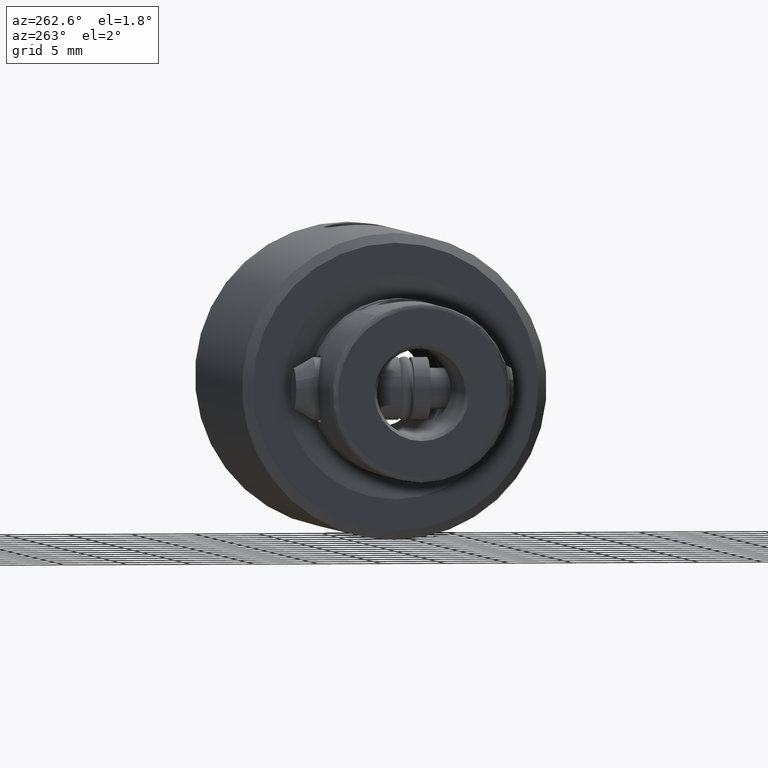
[diagram: clean part render]
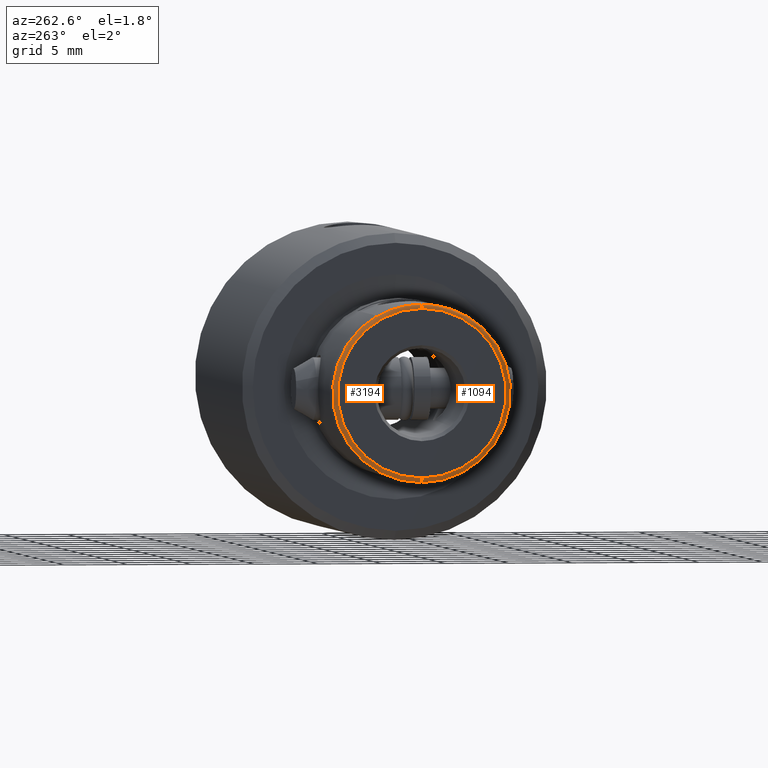
[diagram: same view with one multi-face feature highlighted, each face labeled with its STEP entity id]
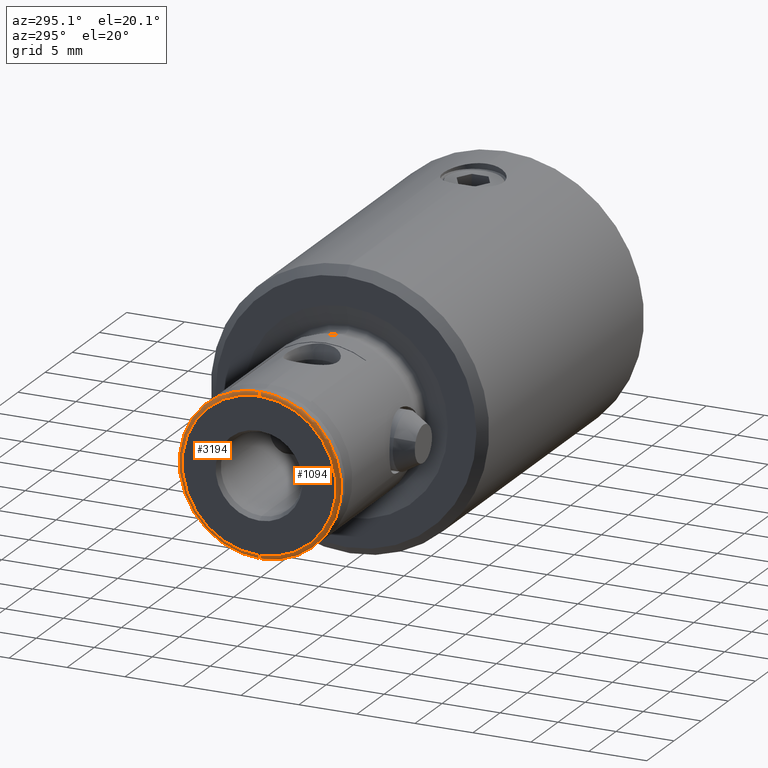
[diagram: same view with one multi-face feature highlighted, each face labeled with its STEP entity id]
A machine part, auxiliary view. The highlighted faces form ONE feature: a constant-radius fillet chain: 2 tangent blend faces with common blend radius 0.4 mm. The faces share edges in the B-rep.
A second angle (auxiliary view) of the same feature is appended — it is thin or edge-on in the first view.
Their STEP definitions:
[1] entity #1094 (Torus):
#66 = EDGE_CURVE ( 'NONE', #3779, #3243, #1831, .T. ) ;
#74 = ORIENTED_EDGE ( 'NONE', *, *, #667, .F. ) ;
#116 = ORIENTED_EDGE ( 'NONE', *, *, #670, .F. ) ;
#230 = CARTESIAN_POINT ( 'NONE',  ( 6.949999999999999300, -4.661647059522612200E-015, 45.83891628750564000 ) ) ;
#291 = DIRECTION ( 'NONE',  ( -0.0000000000000000000, -1.000000000000000000, -0.0000000000000000000 ) ) ;
#494 = CARTESIAN_POINT ( 'NONE',  ( 6.629190075645206900, 8.345472000554884100E-016, 46.00000000000000000 ) ) ;
#615 = ORIENTED_EDGE ( 'NONE', *, *, #2017, .T. ) ;
#651 = AXIS2_PLACEMENT_3D ( 'NONE', #3585, #1607, #3902 ) ;
#667 = EDGE_CURVE ( 'NONE', #3055, #3572, #3256, .T. ) ;
#670 = EDGE_CURVE ( 'NONE', #3581, #3055, #2884, .T. ) ;
#829 = DIRECTION ( 'NONE',  ( -1.224646799147353200E-016, 1.000000000000000000, 0.0000000000000000000 ) ) ;
#927 = EDGE_CURVE ( 'NONE', #3779, #3696, #2097, .T. ) ;
#977 = DIRECTION ( 'NONE',  ( -1.000000000000000000, 0.0000000000000000000, 0.0000000000000000000 ) ) ;
#1094 = ADVANCED_FACE ( 'NONE', ( #2556 ), #3335, .T. ) ;
#1216 = CARTESIAN_POINT ( 'NONE',  ( 6.012177826494832000, -3.500000000000000000, 45.82958365722462400 ) ) ;
#1330 = CARTESIAN_POINT ( 'NONE',  ( 6.055573711234293600, -3.500000000000000000, 45.76413856607491200 ) ) ;
#1340 = CARTESIAN_POINT ( 'NONE',  ( 0.0000000000000000000, 0.0000000000000000000, 45.60000000000000100 ) ) ;
#1476 = AXIS2_PLACEMENT_3D ( 'NONE', #1650, #1593, #3247 ) ;
#1527 = ORIENTED_EDGE ( 'NONE', *, *, #2380, .F. ) ;
#1559 = AXIS2_PLACEMENT_3D ( 'NONE', #1340, #3325, #977 ) ;
#1574 = ORIENTED_EDGE ( 'NONE', *, *, #66, .F. ) ;
#1593 = DIRECTION ( 'NONE',  ( 0.0000000000000000000, 0.0000000000000000000, 1.000000000000000000 ) ) ;
#1607 = DIRECTION ( 'NONE',  ( 0.0000000000000000000, 0.0000000000000000000, 1.000000000000000000 ) ) ;
#1650 = CARTESIAN_POINT ( 'NONE',  ( 0.0000000000000000000, 0.0000000000000000000, 46.00000000000000000 ) ) ;
#1831 = CIRCLE ( 'NONE', #1476, 6.629190075645206900 ) ;
#1918 = CARTESIAN_POINT ( 'NONE',  ( 6.062177826491063300, -3.500000000000000000, 45.74999999999999300 ) ) ;
#1972 = DIRECTION ( 'NONE',  ( -1.000000000000000000, -1.224646799147353200E-016, 0.0000000000000000000 ) ) ;
#2017 = EDGE_CURVE ( 'NONE', #3696, #3572, #3244, .T. ) ;
#2097 = CIRCLE ( 'NONE', #3834, 0.3999999999999975800 ) ;
#2099 = AXIS2_PLACEMENT_3D ( 'NONE', #2840, #829, #1972 ) ;
#2242 = ORIENTED_EDGE ( 'NONE', *, *, #927, .T. ) ;
#2278 = CARTESIAN_POINT ( 'NONE',  ( -6.629190075645206900, 0.0000000000000000000, 45.60000000000000100 ) ) ;
#2380 = EDGE_CURVE ( 'NONE', #3243, #3581, #4038, .T. ) ;
#2497 = EDGE_LOOP ( 'NONE', ( #1527, #1574, #2242, #615, #74, #116 ) ) ;
#2556 = FACE_OUTER_BOUND ( 'NONE', #2497, .T. ) ;
#2590 = CARTESIAN_POINT ( 'NONE',  ( 6.950000000000002000, -0.6100083071536003300, 45.83891628750565400 ) ) ;
#2606 = DIRECTION ( 'NONE',  ( 0.0000000000000000000, 0.0000000000000000000, -1.000000000000000000 ) ) ;
#2840 = CARTESIAN_POINT ( 'NONE',  ( 6.629190075645206900, 8.118416407078302900E-016, 45.60000000000000100 ) ) ;
#2884 = B_SPLINE_CURVE_WITH_KNOTS ( 'NONE', 3,
 ( #3227, #2590, #3631, #3290, #3258, #3246 ),
 .UNSPECIFIED., .F., .F.,
 ( 4, 2, 4 ),
 ( 0.003685555790496418800, 0.005530184435536727800, 0.007374813080577036400 ),
 .UNSPECIFIED. ) ;
#2918 = CARTESIAN_POINT ( 'NONE',  ( 6.012177826494832000, -3.500000000000000000, 45.82958365722462400 ) ) ;
#2958 = CARTESIAN_POINT ( 'NONE',  ( 6.062177826491063300, -3.500000000000000000, 45.74999999999999300 ) ) ;
#2976 = CARTESIAN_POINT ( 'NONE',  ( 6.031313584202576000, -3.500000000000000400, 45.80451829029652800 ) ) ;
#3055 = VERTEX_POINT ( 'NONE', #1216 ) ;
#3227 = CARTESIAN_POINT ( 'NONE',  ( 6.949999999999999300, -4.661647059522612200E-015, 45.83891628750564000 ) ) ;
#3243 = VERTEX_POINT ( 'NONE', #494 ) ;
#3244 = CIRCLE ( 'NONE', #651, 7.000000000000003600 ) ;
#3246 = CARTESIAN_POINT ( 'NONE',  ( 6.012177826494832000, -3.500000000000000000, 45.82958365722462400 ) ) ;
#3247 = DIRECTION ( 'NONE',  ( 1.000000000000000000, 0.0000000000000000000, 0.0000000000000000000 ) ) ;
#3256 = B_SPLINE_CURVE_WITH_KNOTS ( 'NONE', 3,
 ( #2918, #3485, #2976, #3274, #1330, #1918 ),
 .UNSPECIFIED., .F., .F.,
 ( 4, 2, 4 ),
 ( 0.002695799402419125400, 0.002742612760528581700, 0.002789426118638038000 ),
 .UNSPECIFIED. ) ;
#3258 = CARTESIAN_POINT ( 'NONE',  ( 6.320115424214631800, -2.966636435183896700, 45.83274133707434600 ) ) ;
#3274 = CARTESIAN_POINT ( 'NONE',  ( 6.048075180170096500, -3.499999999999999600, 45.77786771288550200 ) ) ;
#3290 = CARTESIAN_POINT ( 'NONE',  ( 6.553898425522756800, -2.401512669169245200, 45.83505005294603800 ) ) ;
#3325 = DIRECTION ( 'NONE',  ( 0.0000000000000000000, 0.0000000000000000000, -1.000000000000000000 ) ) ;
#3335 = TOROIDAL_SURFACE ( 'NONE', #1559, 6.629190075645206900, 0.4000000000000000200 ) ;
#3485 = CARTESIAN_POINT ( 'NONE',  ( 6.022036945376074300, -3.500000000000000000, 45.81742724848126600 ) ) ;
#3572 = VERTEX_POINT ( 'NONE', #2958 ) ;
#3581 = VERTEX_POINT ( 'NONE', #230 ) ;
#3585 = CARTESIAN_POINT ( 'NONE',  ( 0.0000000000000000000, 0.0000000000000000000, 45.75000000000000000 ) ) ;
#3613 = CARTESIAN_POINT ( 'NONE',  ( -6.629190075645206900, 0.0000000000000000000, 46.00000000000000000 ) ) ;
#3631 = CARTESIAN_POINT ( 'NONE',  ( 6.871621016291347100, -1.212394334214854000, 45.83816499539676000 ) ) ;
#3696 = VERTEX_POINT ( 'NONE', #3858 ) ;
#3779 = VERTEX_POINT ( 'NONE', #3613 ) ;
#3834 = AXIS2_PLACEMENT_3D ( 'NONE', #2278, #291, #2606 ) ;
#3858 = CARTESIAN_POINT ( 'NONE',  ( -7.000000000000003600, 8.572527594031476100E-016, 45.75000000000000000 ) ) ;
#3902 = DIRECTION ( 'NONE',  ( 1.000000000000000000, 0.0000000000000000000, 0.0000000000000000000 ) ) ;
#4038 = CIRCLE ( 'NONE', #2099, 0.4000000000000001900 ) ;
[2] entity #3194 (Torus):
#56 = DIRECTION ( 'NONE',  ( 1.000000000000000000, 0.0000000000000000000, 0.0000000000000000000 ) ) ;
#104 = CIRCLE ( 'NONE', #3755, 7.000000000000003600 ) ;
#133 = ORIENTED_EDGE ( 'NONE', *, *, #3121, .F. ) ;
#193 = CARTESIAN_POINT ( 'NONE',  ( 6.062177826491063300, 3.500000000000000000, 45.74999999999999300 ) ) ;
#230 = CARTESIAN_POINT ( 'NONE',  ( 6.949999999999999300, -4.661647059522612200E-015, 45.83891628750564000 ) ) ;
#248 = CARTESIAN_POINT ( 'NONE',  ( 6.555491910919211100, 2.394885120152331100, 45.83506562622192600 ) ) ;
#251 = ORIENTED_EDGE ( 'NONE', *, *, #1909, .F. ) ;
#276 = CARTESIAN_POINT ( 'NONE',  ( 6.012177826491070600, 3.500000000000000000, 45.82958365722937800 ) ) ;
#291 = DIRECTION ( 'NONE',  ( -0.0000000000000000000, -1.000000000000000000, -0.0000000000000000000 ) ) ;
#318 = B_SPLINE_CURVE_WITH_KNOTS ( 'NONE', 3,
 ( #3874, #3559, #1241, #1913, #4191, #276 ),
 .UNSPECIFIED., .F., .F.,
 ( 4, 2, 4 ),
 ( 0.002666602921443533100, 0.002713051850048648800, 0.002759500778653764500 ),
 .UNSPECIFIED. ) ;
#477 = FACE_OUTER_BOUND ( 'NONE', #2653, .T. ) ;
#494 = CARTESIAN_POINT ( 'NONE',  ( 6.629190075645206900, 8.345472000554884100E-016, 46.00000000000000000 ) ) ;
#563 = CARTESIAN_POINT ( 'NONE',  ( 6.849938536404821800, 1.218160003027467500, 45.83794714920257000 ) ) ;
#693 = ORIENTED_EDGE ( 'NONE', *, *, #2380, .T. ) ;
#820 = CARTESIAN_POINT ( 'NONE',  ( 0.0000000000000000000, 0.0000000000000000000, 45.75000000000000000 ) ) ;
#829 = DIRECTION ( 'NONE',  ( -1.224646799147353200E-016, 1.000000000000000000, 0.0000000000000000000 ) ) ;
#857 = CARTESIAN_POINT ( 'NONE',  ( 6.012177826491070600, 3.500000000000000000, 45.82958365722937800 ) ) ;
#875 = CARTESIAN_POINT ( 'NONE',  ( 6.950000000000000200, 0.3046790755118283200, 45.83891628750564000 ) ) ;
#921 = EDGE_CURVE ( 'NONE', #3343, #2755, #318, .T. ) ;
#927 = EDGE_CURVE ( 'NONE', #3779, #3696, #2097, .T. ) ;
#1041 = AXIS2_PLACEMENT_3D ( 'NONE', #2076, #1405, #3071 ) ;
#1160 = DIRECTION ( 'NONE',  ( 1.000000000000000000, 0.0000000000000000000, 0.0000000000000000000 ) ) ;
#1162 = AXIS2_PLACEMENT_3D ( 'NONE', #3989, #2034, #56 ) ;
#1241 = CARTESIAN_POINT ( 'NONE',  ( 6.047947600475747100, 3.500000000000000400, 45.77809159310700000 ) ) ;
#1259 = CARTESIAN_POINT ( 'NONE',  ( 6.012177826491070600, 3.500000000000000000, 45.82958365722937800 ) ) ;
#1278 = ORIENTED_EDGE ( 'NONE', *, *, #1557, .T. ) ;
#1405 = DIRECTION ( 'NONE',  ( 0.0000000000000000000, 0.0000000000000000000, -1.000000000000000000 ) ) ;
#1553 = CIRCLE ( 'NONE', #1162, 6.629190075645206900 ) ;
#1557 = EDGE_CURVE ( 'NONE', #3343, #3696, #104, .T. ) ;
#1909 = EDGE_CURVE ( 'NONE', #2755, #3581, #2754, .T. ) ;
#1913 = CARTESIAN_POINT ( 'NONE',  ( 6.031147000903902500, 3.499999999999999600, 45.80476175119376600 ) ) ;
#1972 = DIRECTION ( 'NONE',  ( -1.000000000000000000, -1.224646799147353200E-016, 0.0000000000000000000 ) ) ;
#2034 = DIRECTION ( 'NONE',  ( 0.0000000000000000000, 0.0000000000000000000, 1.000000000000000000 ) ) ;
#2076 = CARTESIAN_POINT ( 'NONE',  ( 0.0000000000000000000, 0.0000000000000000000, 45.60000000000000100 ) ) ;
#2097 = CIRCLE ( 'NONE', #3834, 0.3999999999999975800 ) ;
#2099 = AXIS2_PLACEMENT_3D ( 'NONE', #2840, #829, #1972 ) ;
#2243 = TOROIDAL_SURFACE ( 'NONE', #1041, 6.629190075645206900, 0.4000000000000000200 ) ;
#2275 = ORIENTED_EDGE ( 'NONE', *, *, #927, .F. ) ;
#2278 = CARTESIAN_POINT ( 'NONE',  ( -6.629190075645206900, 0.0000000000000000000, 45.60000000000000100 ) ) ;
#2380 = EDGE_CURVE ( 'NONE', #3243, #3581, #4038, .T. ) ;
#2550 = CARTESIAN_POINT ( 'NONE',  ( 6.790628956961941600, 1.515847948892067800, 45.83737097623567500 ) ) ;
#2606 = DIRECTION ( 'NONE',  ( 0.0000000000000000000, 0.0000000000000000000, -1.000000000000000000 ) ) ;
#2653 = EDGE_LOOP ( 'NONE', ( #133, #693, #251, #3109, #1278, #2275 ) ) ;
#2754 = B_SPLINE_CURVE_WITH_KNOTS ( 'NONE', 3,
 ( #857, #3821, #248, #2550, #563, #2891, #875, #3222 ),
 .UNSPECIFIED., .F., .F.,
 ( 4, 2, 2, 4 ),
 ( 2.305669367091684200E-007, 0.001842893178716564300, 0.002764224484606491700, 0.003685555790496418800 ),
 .UNSPECIFIED. ) ;
#2755 = VERTEX_POINT ( 'NONE', #1259 ) ;
#2840 = CARTESIAN_POINT ( 'NONE',  ( 6.629190075645206900, 8.118416407078302900E-016, 45.60000000000000100 ) ) ;
#2891 = CARTESIAN_POINT ( 'NONE',  ( 6.929753970110047200, 0.6132700187301338700, 45.83872106207711300 ) ) ;
#3071 = DIRECTION ( 'NONE',  ( -1.000000000000000000, 0.0000000000000000000, 0.0000000000000000000 ) ) ;
#3109 = ORIENTED_EDGE ( 'NONE', *, *, #921, .F. ) ;
#3121 = EDGE_CURVE ( 'NONE', #3243, #3779, #1553, .T. ) ;
#3166 = DIRECTION ( 'NONE',  ( 0.0000000000000000000, 0.0000000000000000000, 1.000000000000000000 ) ) ;
#3194 = ADVANCED_FACE ( 'NONE', ( #477 ), #2243, .T. ) ;
#3222 = CARTESIAN_POINT ( 'NONE',  ( 6.949999999999999300, -4.661647059522612200E-015, 45.83891628750564000 ) ) ;
#3243 = VERTEX_POINT ( 'NONE', #494 ) ;
#3343 = VERTEX_POINT ( 'NONE', #193 ) ;
#3559 = CARTESIAN_POINT ( 'NONE',  ( 6.055503249315889600, 3.500000000000000000, 45.76428941602989700 ) ) ;
#3581 = VERTEX_POINT ( 'NONE', #230 ) ;
#3613 = CARTESIAN_POINT ( 'NONE',  ( -6.629190075645206900, 0.0000000000000000000, 46.00000000000000000 ) ) ;
#3696 = VERTEX_POINT ( 'NONE', #3858 ) ;
#3755 = AXIS2_PLACEMENT_3D ( 'NONE', #820, #3166, #1160 ) ;
#3779 = VERTEX_POINT ( 'NONE', #3613 ) ;
#3821 = CARTESIAN_POINT ( 'NONE',  ( 6.319787956970514200, 2.967203625086797500, 45.83273797913197000 ) ) ;
#3834 = AXIS2_PLACEMENT_3D ( 'NONE', #2278, #291, #2606 ) ;
#3858 = CARTESIAN_POINT ( 'NONE',  ( -7.000000000000003600, 8.572527594031476100E-016, 45.75000000000000000 ) ) ;
#3874 = CARTESIAN_POINT ( 'NONE',  ( 6.062177826491063300, 3.500000000000000000, 45.74999999999999300 ) ) ;
#3989 = CARTESIAN_POINT ( 'NONE',  ( 0.0000000000000000000, 0.0000000000000000000, 46.00000000000000000 ) ) ;
#4038 = CIRCLE ( 'NONE', #2099, 0.4000000000000001900 ) ;
#4191 = CARTESIAN_POINT ( 'NONE',  ( 6.021968603301362000, 3.500000000000000000, 45.81751151505792300 ) ) ;